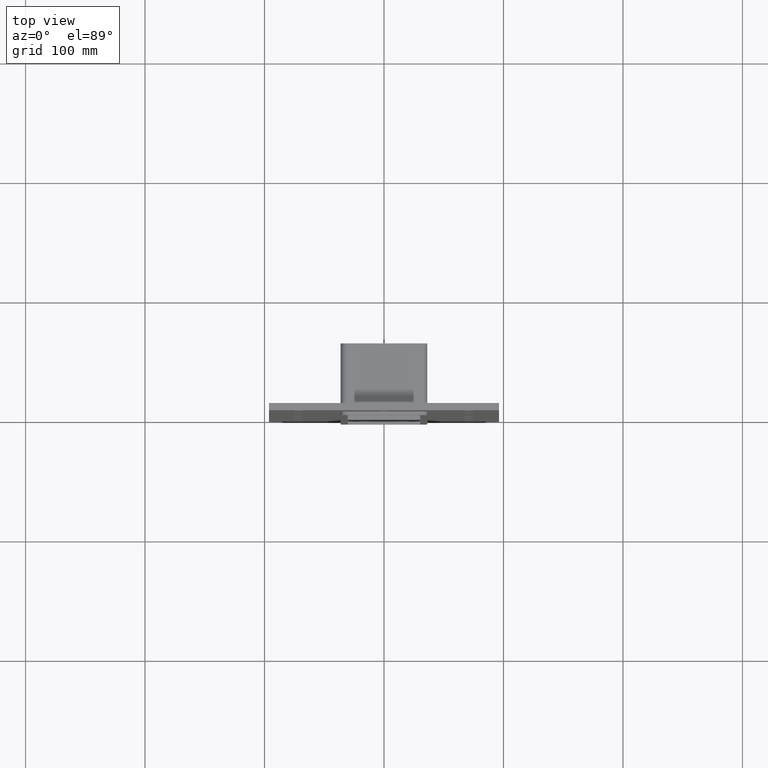
[diagram: clean part render]
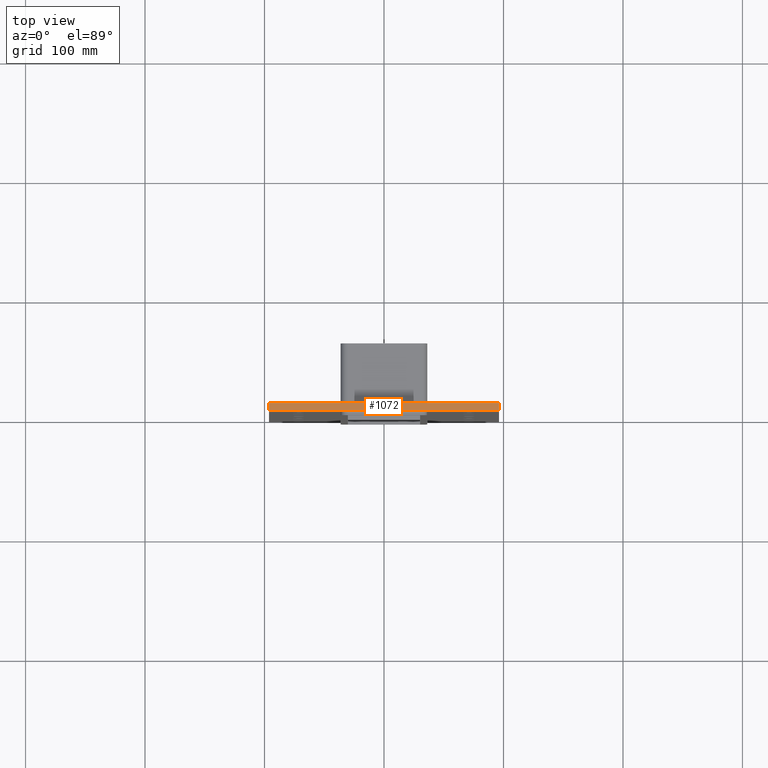
[diagram: same view with one face highlighted and labeled with its STEP entity id]
A machine part, top view. The second image highlights one B-rep face of the part: STEP entity #1072.
In plain terms, the highlighted planar face has unit normal (0, 0, 1).
Its self-contained STEP definition (entity closure, byte-faithful):
#694=CARTESIAN_POINT('',(-96.25,6.000000000000001,289.00000000000006));
#695=VERTEX_POINT('',#694);
#696=CARTESIAN_POINT('',(96.25,6.000000000000001,289.00000000000006));
#697=VERTEX_POINT('',#696);
#698=CARTESIAN_POINT('',(-96.25,6.000000000000001,289.00000000000006));
#699=DIRECTION('',(1.0,0.0,0.0));
#700=VECTOR('',#699,192.5);
#701=LINE('',#698,#700);
#702=EDGE_CURVE('',#695,#697,#701,.T.);
#852=CARTESIAN_POINT('',(-96.25,0.0,289.00000000000006));
#853=VERTEX_POINT('',#852);
#854=CARTESIAN_POINT('',(96.25,0.0,289.00000000000006));
#855=VERTEX_POINT('',#854);
#856=CARTESIAN_POINT('',(-96.25,0.0,289.00000000000006));
#857=DIRECTION('',(1.0,0.0,0.0));
#858=VECTOR('',#857,192.5);
#859=LINE('',#856,#858);
#860=EDGE_CURVE('',#853,#855,#859,.T.);
#1011=CARTESIAN_POINT('',(-96.25,0.0,289.00000000000006));
#1012=DIRECTION('',(0.0,1.0,0.0));
#1013=VECTOR('',#1012,6.000000000000001);
#1014=LINE('',#1011,#1013);
#1015=EDGE_CURVE('',#853,#695,#1014,.T.);
#1052=CARTESIAN_POINT('',(96.25,0.0,289.00000000000006));
#1053=DIRECTION('',(0.0,1.0,0.0));
#1054=VECTOR('',#1053,6.000000000000001);
#1055=LINE('',#1052,#1054);
#1056=EDGE_CURVE('',#855,#697,#1055,.T.);
#1061=CARTESIAN_POINT('',(-96.25,0.0,289.00000000000006));
#1062=DIRECTION('',(0.0,0.0,1.0));
#1063=DIRECTION('',(1.0,0.0,0.0));
#1064=AXIS2_PLACEMENT_3D('',#1061,#1062,#1063);
#1065=PLANE('',#1064);
#1066=ORIENTED_EDGE('',*,*,#860,.T.);
#1067=ORIENTED_EDGE('',*,*,#1056,.T.);
#1068=ORIENTED_EDGE('',*,*,#702,.F.);
#1069=ORIENTED_EDGE('',*,*,#1015,.F.);
#1070=EDGE_LOOP('',(#1066,#1067,#1068,#1069));
#1071=FACE_OUTER_BOUND('',#1070,.T.);
#1072=ADVANCED_FACE('',(#1071),#1065,.T.);